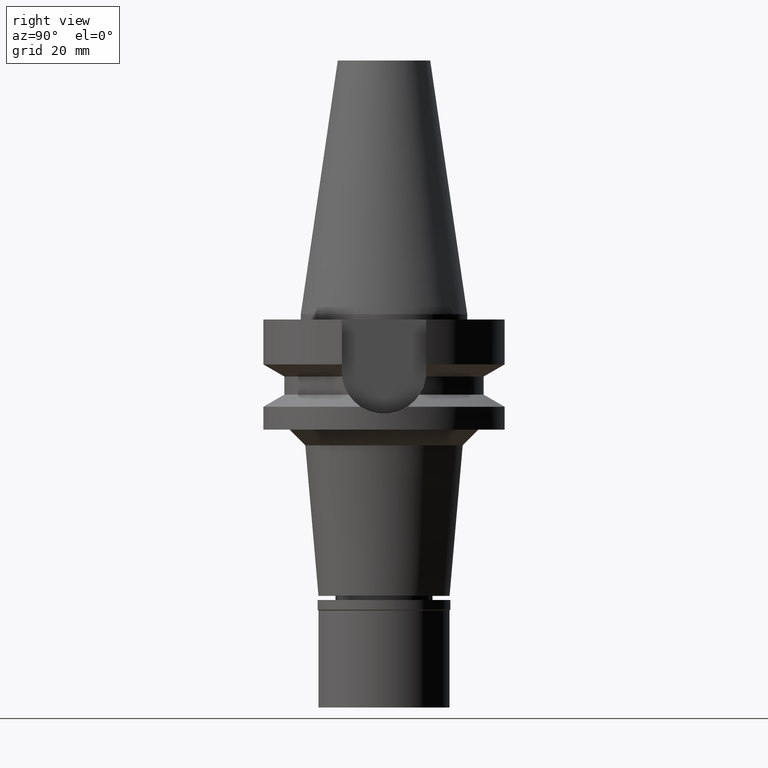
[diagram: clean part render]
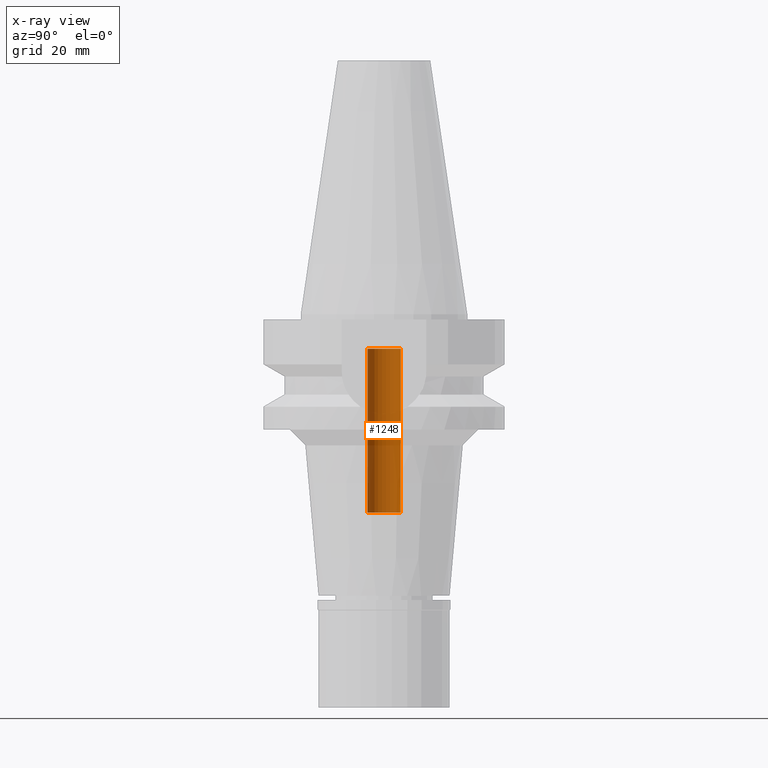
[diagram: x-ray — body ghosted, one internal face saturated and labeled with its STEP entity id]
A machine part, right view, then the same camera in x-ray: the body is ghosted and one INTERNAL B-rep face — a face not visible from any outside direction — is saturated and labeled: STEP entity #1248.
In plain terms, the highlighted cylindrical surface (edge-blend (fillet) strip) has radius 3.2 mm, axis along (0, 0, -1).
Its self-contained STEP definition (entity closure, byte-faithful):
#15 = VECTOR ( 'NONE', #1332, 1000.000000000000000 ) ;
#35 = AXIS2_PLACEMENT_3D ( 'NONE', #869, #414, #1837 ) ;
#90 = DIRECTION ( 'NONE',  ( 0.0000000000000000000, 0.0000000000000000000, 1.000000000000000000 ) ) ;
#176 = CARTESIAN_POINT ( 'NONE',  ( 0.0000000000000000000, -3.200000000000000178, -37.79999999999999716 ) ) ;
#194 = CIRCLE ( 'NONE', #35, 3.200000000000000178 ) ;
#253 = LINE ( 'NONE', #176, #15 ) ;
#255 = ORIENTED_EDGE ( 'NONE', *, *, #1333, .T. ) ;
#315 = CARTESIAN_POINT ( 'NONE',  ( 0.0000000000000000000, 0.0000000000000000000, 0.0000000000000000000 ) ) ;
#410 = EDGE_LOOP ( 'NONE', ( #2620, #1732, #255, #592 ) ) ;
#414 = DIRECTION ( 'NONE',  ( 0.0000000000000000000, 0.0000000000000000000, -1.000000000000000000 ) ) ;
#437 = AXIS2_PLACEMENT_3D ( 'NONE', #2214, #90, #750 ) ;
#592 = ORIENTED_EDGE ( 'NONE', *, *, #2430, .T. ) ;
#636 = VERTEX_POINT ( 'NONE', #2258 ) ;
#750 = DIRECTION ( 'NONE',  ( 0.0000000000000000000, 1.000000000000000000, 0.0000000000000000000 ) ) ;
#778 = CYLINDRICAL_SURFACE ( 'NONE', #1285, 3.200000000000000178 ) ;
#869 = CARTESIAN_POINT ( 'NONE',  ( 0.0000000000000000000, 0.0000000000000000000, -37.79999999999999716 ) ) ;
#954 = VERTEX_POINT ( 'NONE', #1782 ) ;
#1004 = VERTEX_POINT ( 'NONE', #1253 ) ;
#1058 = VERTEX_POINT ( 'NONE', #2322 ) ;
#1246 = DIRECTION ( 'NONE',  ( 0.0000000000000000000, 0.0000000000000000000, -1.000000000000000000 ) ) ;
#1248 = ADVANCED_FACE ( 'NONE', ( #2922 ), #778, .F. ) ;
#1253 = CARTESIAN_POINT ( 'NONE',  ( 0.0000000000000000000, 3.200000000000000178, -6.599999999999999645 ) ) ;
#1285 = AXIS2_PLACEMENT_3D ( 'NONE', #315, #1246, #1945 ) ;
#1332 = DIRECTION ( 'NONE',  ( 0.0000000000000000000, 0.0000000000000000000, 1.000000000000000000 ) ) ;
#1333 = EDGE_CURVE ( 'NONE', #1058, #636, #194, .T. ) ;
#1608 = VECTOR ( 'NONE', #1751, 1000.000000000000000 ) ;
#1732 = ORIENTED_EDGE ( 'NONE', *, *, #2249, .F. ) ;
#1750 = CIRCLE ( 'NONE', #437, 3.200000000000000178 ) ;
#1751 = DIRECTION ( 'NONE',  ( 0.0000000000000000000, 0.0000000000000000000, 1.000000000000000000 ) ) ;
#1782 = CARTESIAN_POINT ( 'NONE',  ( 0.0000000000000000000, -3.200000000000000178, -6.599999999999999645 ) ) ;
#1837 = DIRECTION ( 'NONE',  ( 0.0000000000000000000, -1.000000000000000000, 0.0000000000000000000 ) ) ;
#1945 = DIRECTION ( 'NONE',  ( 0.0000000000000000000, -1.000000000000000000, 0.0000000000000000000 ) ) ;
#2045 = CARTESIAN_POINT ( 'NONE',  ( 0.0000000000000000000, 3.200000000000000178, -37.79999999999999716 ) ) ;
#2214 = CARTESIAN_POINT ( 'NONE',  ( 0.0000000000000000000, 0.0000000000000000000, -6.599999999999999645 ) ) ;
#2249 = EDGE_CURVE ( 'NONE', #1058, #954, #253, .T. ) ;
#2258 = CARTESIAN_POINT ( 'NONE',  ( 0.0000000000000000000, 3.200000000000000178, -37.79999999999999716 ) ) ;
#2322 = CARTESIAN_POINT ( 'NONE',  ( 0.0000000000000000000, -3.200000000000000178, -37.79999999999999716 ) ) ;
#2407 = EDGE_CURVE ( 'NONE', #1004, #954, #1750, .T. ) ;
#2430 = EDGE_CURVE ( 'NONE', #636, #1004, #2940, .T. ) ;
#2620 = ORIENTED_EDGE ( 'NONE', *, *, #2407, .T. ) ;
#2922 = FACE_OUTER_BOUND ( 'NONE', #410, .T. ) ;
#2940 = LINE ( 'NONE', #2045, #1608 ) ;